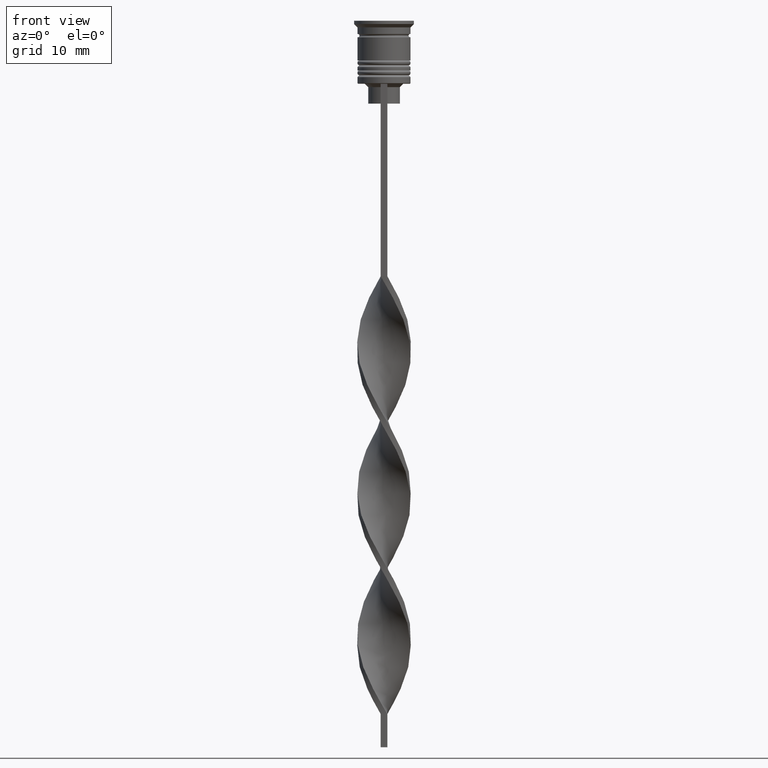
[diagram: clean part render]
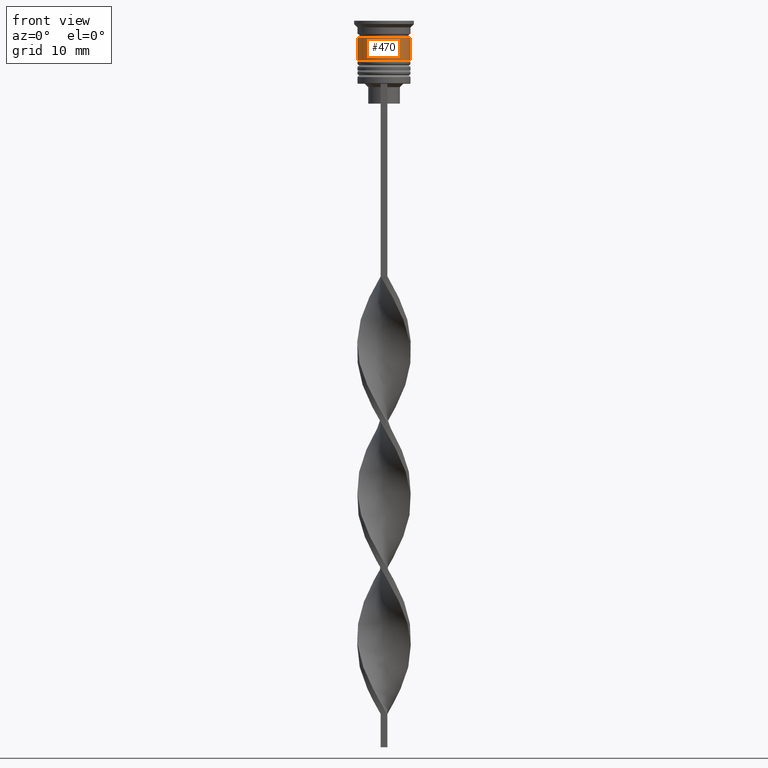
[diagram: same view with one face highlighted and labeled with its STEP entity id]
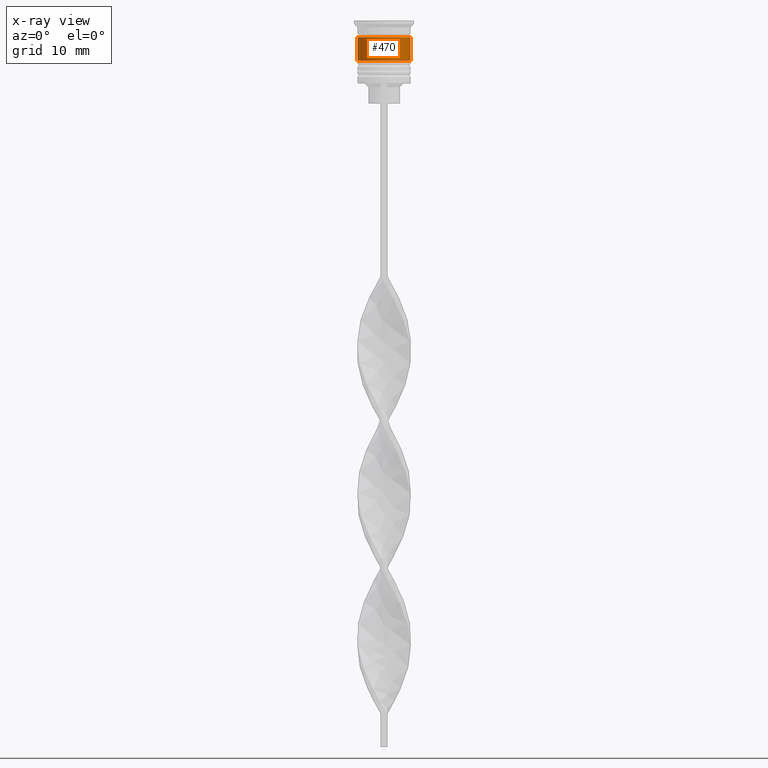
[diagram: x-ray of the same camera — body ghosted, the highlighted face saturated]
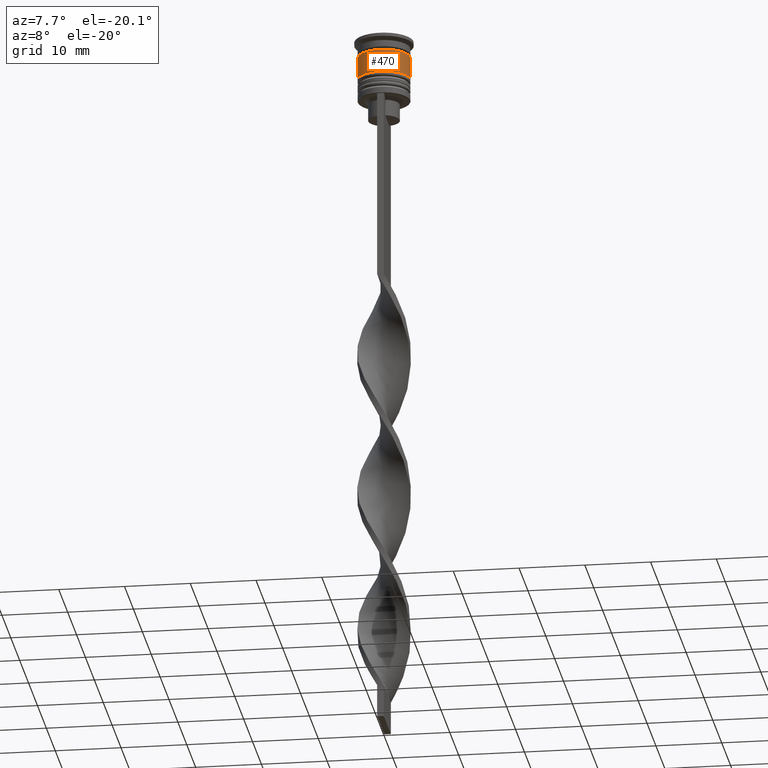
[diagram: same view with one face highlighted and labeled with its STEP entity id]
A machine part, front view. The second image highlights one B-rep face of the part: STEP entity #470.
The next image is the same camera in x-ray: the body ghosted, the highlighted face saturated — about 0% of this face is hidden behind the body in this view.
A second angle (auxiliary view) of the same face is appended — the face is thin or edge-on in the first view.
In plain terms, the highlighted cylindrical surface (edge-blend (fillet) strip) has radius 4 mm, axis along (-0, -0, 1).
Its self-contained STEP definition (entity closure, byte-faithful):
#135 = VERTEX_POINT ( 'NONE', #3322 ) ;
#202 = AXIS2_PLACEMENT_3D ( 'NONE', #648, #3488, #2645 ) ;
#350 = DIRECTION ( 'NONE',  ( 1.000000000000000000, 0.000000000000000000, 0.000000000000000000 ) ) ;
#470 = ADVANCED_FACE ( 'NONE', ( #1496 ), #3190, .T. ) ;
#648 = CARTESIAN_POINT ( 'NONE',  ( 0.000000000000000000, 0.000000000000000000, 0.000000000000000000 ) ) ;
#672 = CARTESIAN_POINT ( 'NONE',  ( 4.000000000000000000, 0.000000000000000000, 0.000000000000000000 ) ) ;
#726 = CARTESIAN_POINT ( 'NONE',  ( 0.000000000000000000, 0.000000000000000000, -2.500000000000000000 ) ) ;
#813 = EDGE_CURVE ( 'NONE', #3353, #2915, #1241, .T. ) ;
#858 = VECTOR ( 'NONE', #2671, 1000.000000000000000 ) ;
#877 = EDGE_CURVE ( 'NONE', #2915, #1227, #2110, .T. ) ;
#1144 = CIRCLE ( 'NONE', #1263, 4.000000000000000000 ) ;
#1145 = CARTESIAN_POINT ( 'NONE',  ( 0.000000000000000000, 0.000000000000000000, -6.000000000000000000 ) ) ;
#1177 = EDGE_LOOP ( 'NONE', ( #1727, #2991, #2546, #2853 ) ) ;
#1227 = VERTEX_POINT ( 'NONE', #1997 ) ;
#1241 = CIRCLE ( 'NONE', #3091, 4.000000000000000888 ) ;
#1263 = AXIS2_PLACEMENT_3D ( 'NONE', #726, #2091, #3529 ) ;
#1406 = DIRECTION ( 'NONE',  ( -0.000000000000000000, -0.000000000000000000, 1.000000000000000000 ) ) ;
#1496 = FACE_OUTER_BOUND ( 'NONE', #1177, .T. ) ;
#1727 = ORIENTED_EDGE ( 'NONE', *, *, #2770, .F. ) ;
#1997 = CARTESIAN_POINT ( 'NONE',  ( 4.000000000000000000, 0.000000000000000000, -2.500000000000000000 ) ) ;
#2091 = DIRECTION ( 'NONE',  ( -0.000000000000000000, -0.000000000000000000, 1.000000000000000000 ) ) ;
#2092 = DIRECTION ( 'NONE',  ( -0.000000000000000000, -0.000000000000000000, 1.000000000000000000 ) ) ;
#2110 = LINE ( 'NONE', #672, #2491 ) ;
#2374 = LINE ( 'NONE', #3513, #858 ) ;
#2479 = CARTESIAN_POINT ( 'NONE',  ( -4.000000000000000888, 4.898587196589413815E-16, -6.000000000000000000 ) ) ;
#2491 = VECTOR ( 'NONE', #2092, 1000.000000000000000 ) ;
#2546 = ORIENTED_EDGE ( 'NONE', *, *, #877, .T. ) ;
#2645 = DIRECTION ( 'NONE',  ( 1.000000000000000000, 0.000000000000000000, 0.000000000000000000 ) ) ;
#2671 = DIRECTION ( 'NONE',  ( -0.000000000000000000, -0.000000000000000000, 1.000000000000000000 ) ) ;
#2770 = EDGE_CURVE ( 'NONE', #3353, #135, #2374, .T. ) ;
#2853 = ORIENTED_EDGE ( 'NONE', *, *, #3612, .F. ) ;
#2915 = VERTEX_POINT ( 'NONE', #3176 ) ;
#2991 = ORIENTED_EDGE ( 'NONE', *, *, #813, .T. ) ;
#3091 = AXIS2_PLACEMENT_3D ( 'NONE', #1145, #1406, #350 ) ;
#3176 = CARTESIAN_POINT ( 'NONE',  ( 4.000000000000000888, 0.000000000000000000, -6.000000000000000000 ) ) ;
#3190 = CYLINDRICAL_SURFACE ( 'NONE', #202, 4.000000000000000000 ) ;
#3322 = CARTESIAN_POINT ( 'NONE',  ( -4.000000000000000000, 4.898587196589412829E-16, -2.500000000000000000 ) ) ;
#3353 = VERTEX_POINT ( 'NONE', #2479 ) ;
#3488 = DIRECTION ( 'NONE',  ( -0.000000000000000000, -0.000000000000000000, 1.000000000000000000 ) ) ;
#3513 = CARTESIAN_POINT ( 'NONE',  ( -4.000000000000000000, 4.898587196589412829E-16, 0.000000000000000000 ) ) ;
#3529 = DIRECTION ( 'NONE',  ( 1.000000000000000000, 0.000000000000000000, 0.000000000000000000 ) ) ;
#3612 = EDGE_CURVE ( 'NONE', #135, #1227, #1144, .T. ) ;